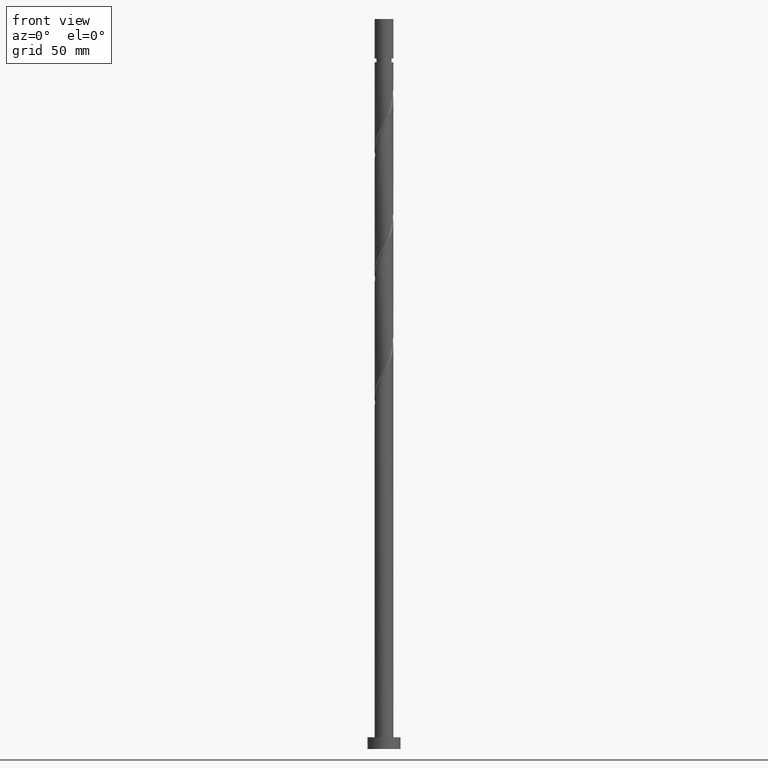
[diagram: clean part render]
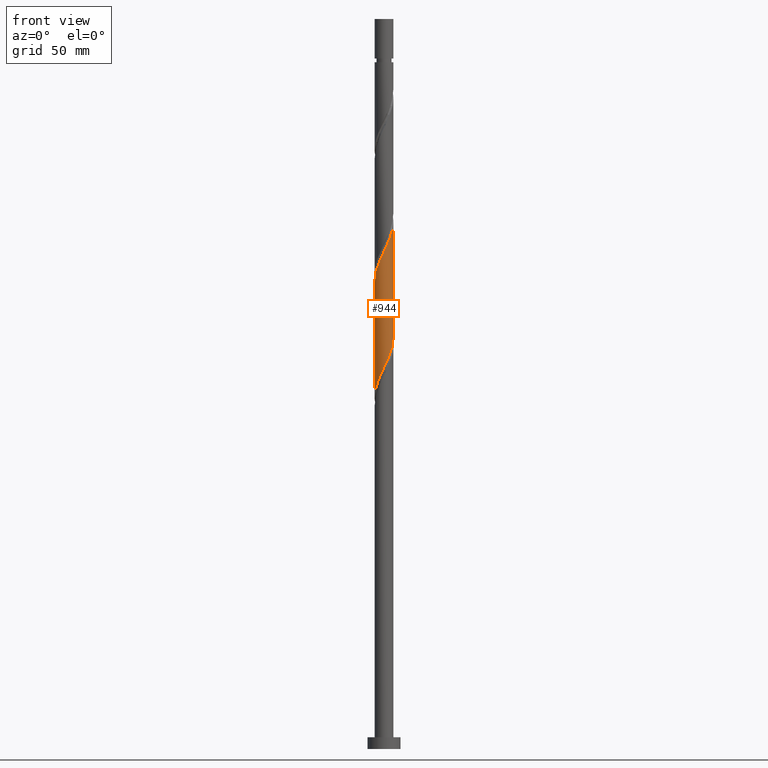
[diagram: same view with one face highlighted and labeled with its STEP entity id]
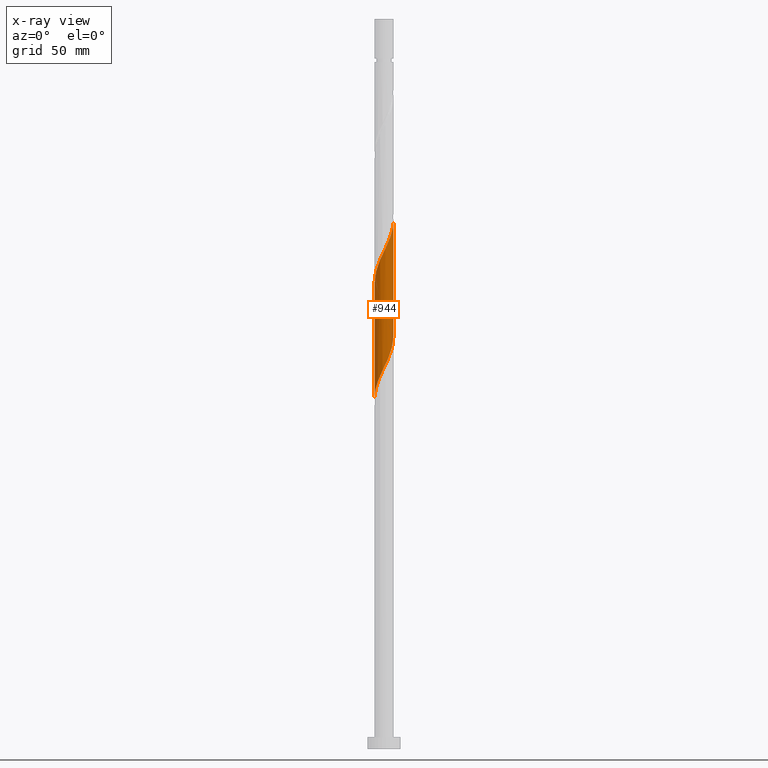
[diagram: x-ray of the same camera — body ghosted, the highlighted face saturated]
A machine part, front view. The second image highlights one B-rep face of the part: STEP entity #944.
The next image is the same camera in x-ray: the body ghosted, the highlighted face saturated — about 0% of this face is hidden behind the body in this view.
In plain terms, the highlighted cylindrical surface (edge-blend (fillet) strip) has radius 4 mm, axis along (-0, -0, -1).
Its self-contained STEP definition (entity closure, byte-faithful):
#21 = CARTESIAN_POINT ( 'NONE',  ( -0.09624924134435075551, -3.998841842776565958, 211.0356802537389171 ) ) ;
#30 = VERTEX_POINT ( 'NONE', #113 ) ;
#63 = CARTESIAN_POINT ( 'NONE',  ( -3.458872505219861004, -2.058961887652579037, 202.5981802537389740 ) ) ;
#75 = CARTESIAN_POINT ( 'NONE',  ( -2.568487795263851847, -3.066410025678347306, 205.4106802537390024 ) ) ;
#95 = CARTESIAN_POINT ( 'NONE',  ( -1.237667874093733467, -3.830313472238014771, 159.4731802537390308 ) ) ;
#104 = CARTESIAN_POINT ( 'NONE',  ( -3.999999999999998224, -8.977852773197980607E-15, 148.9601973316450767 ) ) ;
#111 = CARTESIAN_POINT ( 'NONE',  ( 1.420513679056759626, -3.766332957902735590, 165.0981802537389740 ) ) ;
#113 = CARTESIAN_POINT ( 'NONE',  ( 4.000000000000005329, 6.119567143825683200E-16, 224.3611631758329281 ) ) ;
#120 = CARTESIAN_POINT ( 'NONE',  ( -4.000000000000005329, 9.933102278575590160E-15, 198.1111631758328429 ) ) ;
#127 = DIRECTION ( 'NONE',  ( -1.000000000000000000, 0.000000000000000000, 0.000000000000000000 ) ) ;
#148 = CARTESIAN_POINT ( 'NONE',  ( 2.777010954688416078, -2.913989227796204950, 217.5981802537389740 ) ) ;
#207 = CARTESIAN_POINT ( 'NONE',  ( -4.000000000000007105, -0.4020151261036756241, 198.9494342547964436 ) ) ;
#227 = EDGE_CURVE ( 'NONE', #392, #30, #522, .T. ) ;
#237 = CARTESIAN_POINT ( 'NONE',  ( -3.999999999999998224, -0.04813158866556521698, 149.0605600198701097 ) ) ;
#272 = CARTESIAN_POINT ( 'NONE',  ( -3.561071027285505952, -1.821750020894125521, 152.9106802537390024 ) ) ;
#279 = CARTESIAN_POINT ( 'NONE',  ( 3.355809096668280755, -2.222986362731496524, 219.4731802537390024 ) ) ;
#392 = VERTEX_POINT ( 'NONE', #120 ) ;
#396 = CYLINDRICAL_SURFACE ( 'NONE', #873, 4.000000000000000000 ) ;
#413 = CARTESIAN_POINT ( 'NONE',  ( -2.058961887652576817, -3.458872505219855675, 157.5981802537389171 ) ) ;
#420 = CARTESIAN_POINT ( 'NONE',  ( -0.7959899496852986811, -3.919999999999999041, 160.4106802537390024 ) ) ;
#427 = CARTESIAN_POINT ( 'NONE',  ( 3.999999999999998224, -2.634399026549366747E-15, 175.2101973316449914 ) ) ;
#433 = CARTESIAN_POINT ( 'NONE',  ( 4.000000000000004441, -0.04813158866556968563, 224.2608004876078382 ) ) ;
#463 = CARTESIAN_POINT ( 'NONE',  ( -0.9836620935111634045, -3.877165057846941654, 209.1606802537390024 ) ) ;
#513 = EDGE_LOOP ( 'NONE', ( #1734, #1505, #963, #1664 ) ) ;
#522 =( BOUNDED_CURVE ( )  B_SPLINE_CURVE ( 2, ( #1233, #207, #804, #1403, #1260, #63, #657, #1415, #75, #1116, #1702, #668, #463, #1077, #21, #737, #754, #1336, #1783, #1776, #1488, #148, #896, #279, #1210, #729, #1328, #1910, #1044, #433, #1655 ),
 .UNSPECIFIED., .F., .T. ) 
 B_SPLINE_CURVE_WITH_KNOTS ( ( 3, 2, 2, 2, 2, 2, 2, 2, 2, 2, 2, 2, 2, 2, 2, 3 ),
 ( 0.3045303401299218615, 0.3125000000000000000, 0.3214285714285713969, 0.3303571428571429047, 0.3392857142857143016, 0.3482142857142856984, 0.3571428571428570953, 0.3660714285714286031, 0.3750000000000000000, 0.3839285714285713969, 0.3928571428571429047, 0.4017857142857143016, 0.4107142857142856984, 0.4196428571428570953, 0.4285714285714286031, 0.4295303401299219170 ),
 .UNSPECIFIED. ) 
 CURVE ( )  GEOMETRIC_REPRESENTATION_ITEM ( )  RATIONAL_B_SPLINE_CURVE ( ( 0.9079949616362096299, 0.9039886423360725676, 0.9090909090909393697, 0.9033747362666143532, 0.9090909090909393697, 0.9033747362666143532, 0.9090909090909393697, 0.9033747362666143532, 0.9090909090909393697, 0.9033747362666143532, 0.9090909090909393697, 0.9033747362666143532, 0.9090909090909393697, 0.9033747362666143532, 0.9090909090909393697, 0.9033747362666143532, 0.9090909090909393697, 0.9033747362666143532, 0.9090909090909393697, 0.9033747362666143532, 0.9090909090909393697, 0.9033747362666143532, 0.9090909090909393697, 0.9033747362666143532, 0.9090909090909393697, 0.9033747362666143532, 0.9090909090909393697, 0.9033747362666143532, 0.9090909090909393697, 0.9084770030214812664, 0.9079949616362097409 ) ) 
 REPRESENTATION_ITEM ( '' )  );
#537 = CARTESIAN_POINT ( 'NONE',  ( 3.999999999999999112, -0.4020151261036875590, 174.3719262526814191 ) ) ;
#559 = DIRECTION ( 'NONE',  ( -0.000000000000000000, -0.000000000000000000, -1.000000000000000000 ) ) ;
#569 = CARTESIAN_POINT ( 'NONE',  ( -3.766332957902735590, -1.420513679056759626, 151.9731802537389740 ) ) ;
#657 = CARTESIAN_POINT ( 'NONE',  ( -3.186430866508033866, -2.417986421170497557, 203.5356802537390308 ) ) ;
#668 = CARTESIAN_POINT ( 'NONE',  ( -1.420513679056762735, -3.766332957902740919, 208.2231802537390024 ) ) ;
#698 = CARTESIAN_POINT ( 'NONE',  ( 3.830313472238014771, -1.237667874093733467, 172.5981802537389740 ) ) ;
#705 = CARTESIAN_POINT ( 'NONE',  ( -0.3543120252768633960, -4.009686527761982866, 161.3481802537389740 ) ) ;
#729 = CARTESIAN_POINT ( 'NONE',  ( 3.766332957902740919, -1.420513679056762735, 221.3481802537389740 ) ) ;
#737 = CARTESIAN_POINT ( 'NONE',  ( 0.3543120252768625633, -4.009686527761989971, 211.9731802537389456 ) ) ;
#740 = LINE ( 'NONE', #1340, #1100 ) ;
#754 = CARTESIAN_POINT ( 'NONE',  ( 0.7959899496852981260, -3.920000000000005258, 212.9106802537390024 ) ) ;
#804 = CARTESIAN_POINT ( 'NONE',  ( -3.920000000000005258, -0.7959899496852985701, 199.7856802537390593 ) ) ;
#837 = CARTESIAN_POINT ( 'NONE',  ( 0.09624924134434909018, -3.998841842776559741, 162.2856802537389740 ) ) ;
#848 = CARTESIAN_POINT ( 'NONE',  ( 0.5468105079655616318, -3.987997157791136171, 163.2231802537389740 ) ) ;
#864 = CARTESIAN_POINT ( 'NONE',  ( -2.777010954688412969, -2.913989227796199177, 155.7231802537390024 ) ) ;
#872 = FACE_OUTER_BOUND ( 'NONE', #513, .T. ) ;
#873 = AXIS2_PLACEMENT_3D ( 'NONE', #1449, #559, #127 ) ;
#885 = LINE ( 'NONE', #1174, #1794 ) ;
#896 = CARTESIAN_POINT ( 'NONE',  ( 3.066410025678347306, -2.568487795263851847, 218.5356802537390024 ) ) ;
#944 = ADVANCED_FACE ( 'NONE', ( #872 ), #396, .T. ) ;
#963 = ORIENTED_EDGE ( 'NONE', *, *, #1167, .T. ) ;
#998 = CARTESIAN_POINT ( 'NONE',  ( 3.919999999999999041, -0.7959899496852987921, 173.5356802537389740 ) ) ;
#1004 = EDGE_CURVE ( 'NONE', #1102, #1889, #1392, .T. ) ;
#1044 = CARTESIAN_POINT ( 'NONE',  ( 3.998841842776565958, -0.09624924134435110246, 224.1606802537390308 ) ) ;
#1077 = CARTESIAN_POINT ( 'NONE',  ( -0.5468105079655641854, -3.987997157791142389, 210.0981802537389740 ) ) ;
#1100 = VECTOR ( 'NONE', #1924, 1000.000000000000000 ) ;
#1102 = VERTEX_POINT ( 'NONE', #427 ) ;
#1116 = CARTESIAN_POINT ( 'NONE',  ( -2.222986362731496524, -3.355809096668280755, 206.3481802537389740 ) ) ;
#1139 = CARTESIAN_POINT ( 'NONE',  ( 2.913989227796199177, -2.777010954688412969, 168.8481802537389740 ) ) ;
#1167 = EDGE_CURVE ( 'NONE', #392, #1889, #740, .T. ) ;
#1171 = CARTESIAN_POINT ( 'NONE',  ( -3.877165057846935436, -0.9836620935111604069, 151.0356802537389456 ) ) ;
#1174 = CARTESIAN_POINT ( 'NONE',  ( 4.000000000000000000, 4.898587196589412829E-16, 310.0000000000000000 ) ) ;
#1210 = CARTESIAN_POINT ( 'NONE',  ( 3.561071027285510837, -1.821750020894129518, 220.4106802537390024 ) ) ;
#1233 = CARTESIAN_POINT ( 'NONE',  ( -4.000000000000005329, 9.933102278575590160E-15, 198.1111631758328429 ) ) ;
#1260 = CARTESIAN_POINT ( 'NONE',  ( -3.644592988728940774, -1.648314880873156918, 201.6606802537390308 ) ) ;
#1300 = CARTESIAN_POINT ( 'NONE',  ( 3.458872505219854787, -2.058961887652576817, 170.7231802537390308 ) ) ;
#1306 = CARTESIAN_POINT ( 'NONE',  ( -1.648314880873155364, -3.644592988728935445, 158.5356802537389740 ) ) ;
#1315 = CARTESIAN_POINT ( 'NONE',  ( 2.222986362731492083, -3.355809096668278091, 166.9731802537389456 ) ) ;
#1328 = CARTESIAN_POINT ( 'NONE',  ( 3.877165057846941654, -0.9836620935111636266, 222.2856802537390024 ) ) ;
#1336 = CARTESIAN_POINT ( 'NONE',  ( 1.237667874093734577, -3.830313472238021433, 213.8481802537389456 ) ) ;
#1340 = CARTESIAN_POINT ( 'NONE',  ( -4.000000000000000000, 0.000000000000000000, 310.0000000000000000 ) ) ;
#1392 =( BOUNDED_CURVE ( )  B_SPLINE_CURVE ( 2, ( #1738, #537, #998, #698, #1754, #1300, #1870, #1139, #1579, #1315, #1604, #111, #1587, #848, #837, #705, #420, #95, #1306, #413, #1879, #864, #1442, #1896, #272, #569, #1171, #1723, #1434, #237, #104 ),
 .UNSPECIFIED., .F., .T. ) 
 B_SPLINE_CURVE_WITH_KNOTS ( ( 3, 2, 2, 2, 2, 2, 2, 2, 2, 2, 2, 2, 2, 2, 2, 3 ),
 ( 0.8045303401299220836, 0.8125000000000000000, 0.8214285714285713969, 0.8303571428571429047, 0.8392857142857143016, 0.8482142857142856984, 0.8571428571428570953, 0.8660714285714286031, 0.8750000000000000000, 0.8839285714285713969, 0.8928571428571429047, 0.9017857142857143016, 0.9107142857142856984, 0.9196428571428570953, 0.9285714285714286031, 0.9295303401299219725 ),
 .UNSPECIFIED. ) 
 CURVE ( )  GEOMETRIC_REPRESENTATION_ITEM ( )  RATIONAL_B_SPLINE_CURVE ( ( 0.9079949616362036346, 0.9039886423360665724, 0.9090909090909334855, 0.9033747362666083580, 0.9090909090909334855, 0.9033747362666083580, 0.9090909090909334855, 0.9033747362666083580, 0.9090909090909334855, 0.9033747362666083580, 0.9090909090909334855, 0.9033747362666083580, 0.9090909090909334855, 0.9033747362666083580, 0.9090909090909334855, 0.9033747362666083580, 0.9090909090909334855, 0.9033747362666083580, 0.9090909090909334855, 0.9033747362666083580, 0.9090909090909334855, 0.9033747362666083580, 0.9090909090909334855, 0.9033747362666083580, 0.9090909090909334855, 0.9033747362666083580, 0.9090909090909334855, 0.9033747362666083580, 0.9090909090909334855, 0.9084770030214753822, 0.9079949616362037457 ) ) 
 REPRESENTATION_ITEM ( '' )  );
#1403 = CARTESIAN_POINT ( 'NONE',  ( -3.830313472238021433, -1.237667874093734577, 200.7231802537389456 ) ) ;
#1415 = CARTESIAN_POINT ( 'NONE',  ( -2.913989227796204950, -2.777010954688416078, 204.4731802537389740 ) ) ;
#1434 = CARTESIAN_POINT ( 'NONE',  ( -3.998841842776559741, -0.09624924134434931222, 149.1606802537390024 ) ) ;
#1442 = CARTESIAN_POINT ( 'NONE',  ( -3.066410025678343754, -2.568487795263845186, 154.7856802537389740 ) ) ;
#1449 = CARTESIAN_POINT ( 'NONE',  ( 0.000000000000000000, 0.000000000000000000, 310.0000000000000000 ) ) ;
#1488 = CARTESIAN_POINT ( 'NONE',  ( 2.417986421170496669, -3.186430866508033866, 216.6606802537389740 ) ) ;
#1505 = ORIENTED_EDGE ( 'NONE', *, *, #227, .F. ) ;
#1579 = CARTESIAN_POINT ( 'NONE',  ( 2.568487795263845186, -3.066410025678344198, 167.9106802537390024 ) ) ;
#1587 = CARTESIAN_POINT ( 'NONE',  ( 0.9836620935111604069, -3.877165057846935436, 164.1606802537389740 ) ) ;
#1604 = CARTESIAN_POINT ( 'NONE',  ( 1.821750020894124855, -3.561071027285505952, 166.0356802537390024 ) ) ;
#1655 = CARTESIAN_POINT ( 'NONE',  ( 4.000000000000005329, 6.119567143825683200E-16, 224.3611631758329281 ) ) ;
#1664 = ORIENTED_EDGE ( 'NONE', *, *, #1004, .F. ) ;
#1702 = CARTESIAN_POINT ( 'NONE',  ( -1.821750020894129074, -3.561071027285510837, 207.2856802537389456 ) ) ;
#1723 = CARTESIAN_POINT ( 'NONE',  ( -3.987997157791136171, -0.5468105079655618539, 150.0981802537389740 ) ) ;
#1734 = ORIENTED_EDGE ( 'NONE', *, *, #1849, .F. ) ;
#1738 = CARTESIAN_POINT ( 'NONE',  ( 3.999999999999998224, -2.634399026549366747E-15, 175.2101973316449914 ) ) ;
#1754 = CARTESIAN_POINT ( 'NONE',  ( 3.644592988728935445, -1.648314880873155586, 171.6606802537389456 ) ) ;
#1757 = DIRECTION ( 'NONE',  ( -0.000000000000000000, -0.000000000000000000, -1.000000000000000000 ) ) ;
#1776 = CARTESIAN_POINT ( 'NONE',  ( 2.058961887652579037, -3.458872505219861448, 215.7231802537390024 ) ) ;
#1783 = CARTESIAN_POINT ( 'NONE',  ( 1.648314880873156474, -3.644592988728941219, 214.7856802537389740 ) ) ;
#1794 = VECTOR ( 'NONE', #1757, 1000.000000000000000 ) ;
#1849 = EDGE_CURVE ( 'NONE', #30, #1102, #885, .T. ) ;
#1870 = CARTESIAN_POINT ( 'NONE',  ( 3.186430866508027648, -2.417986421170494449, 169.7856802537389171 ) ) ;
#1879 = CARTESIAN_POINT ( 'NONE',  ( -2.417986421170494449, -3.186430866508027648, 156.6606802537389740 ) ) ;
#1889 = VERTEX_POINT ( 'NONE', #1900 ) ;
#1896 = CARTESIAN_POINT ( 'NONE',  ( -3.355809096668276315, -2.222986362731492083, 153.8481802537389456 ) ) ;
#1900 = CARTESIAN_POINT ( 'NONE',  ( -3.999999999999998224, -8.977852773197982184E-15, 148.9601973316450483 ) ) ;
#1910 = CARTESIAN_POINT ( 'NONE',  ( 3.987997157791141500, -0.5468105079655644074, 223.2231802537390308 ) ) ;
#1924 = DIRECTION ( 'NONE',  ( -0.000000000000000000, -0.000000000000000000, -1.000000000000000000 ) ) ;